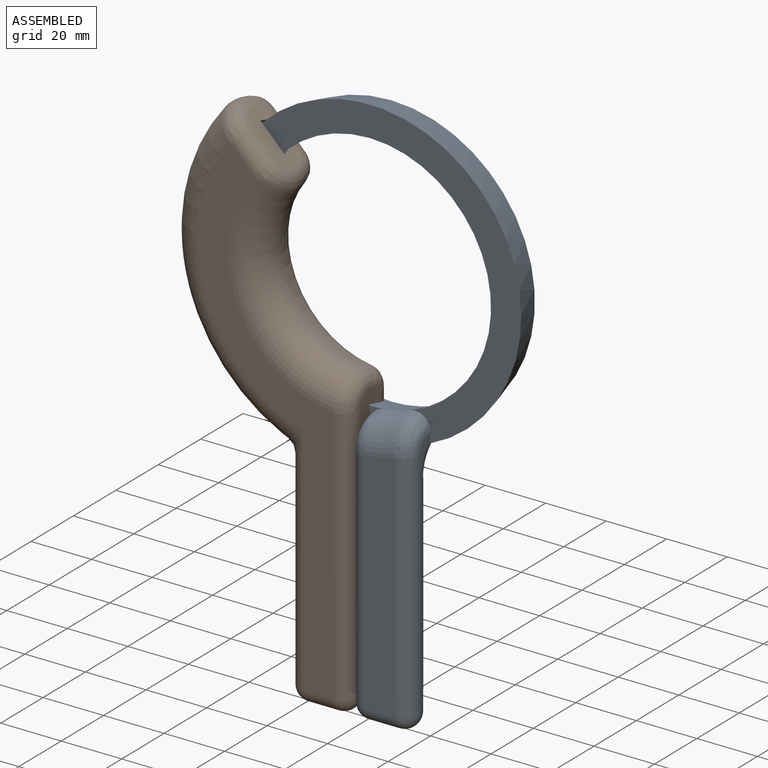
[diagram: assembled view]
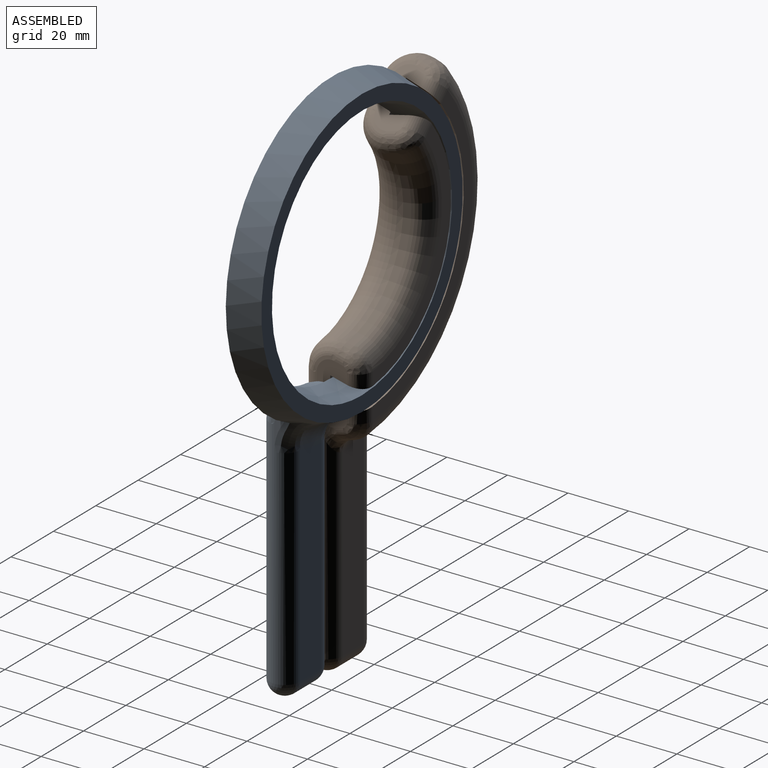
[diagram: assembled view, second angle]
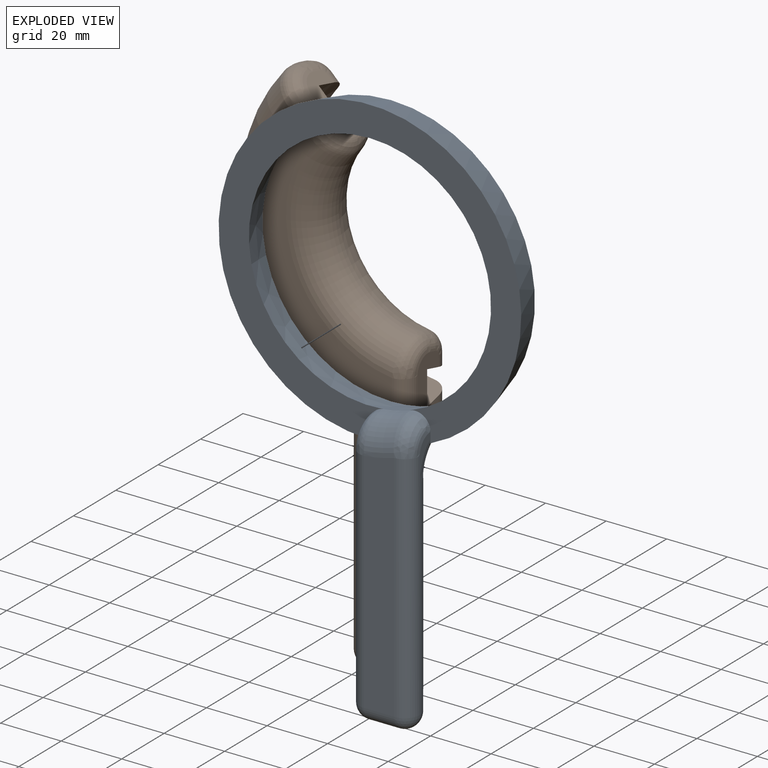
[diagram: exploded view]
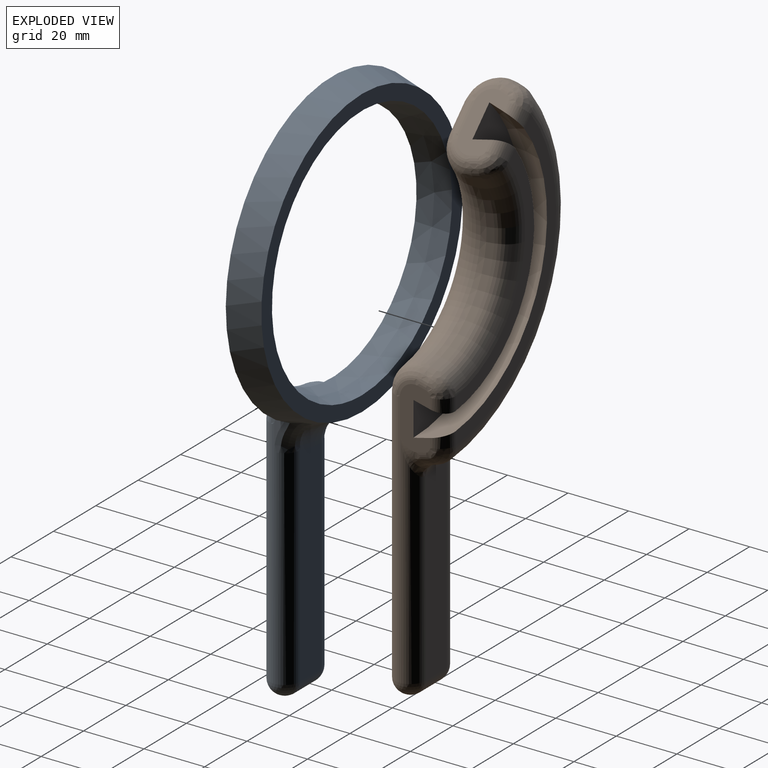
[diagram: exploded view, second angle]
ASSEMBLY  parts=2 mates=2
PART A: 19 faces, bbox 100.3x20.4x180.3 mm
  f0: plane 100.29x100.29mm, normal (0,-1,0), area 2638.5mm2, adj f2,f3,f5,f6,f10,f12,f15,f18
  f1: plane 95x95mm, normal (0,1,0), area 1413.7mm2, adj f2,f3
  f2: cone r=47.5mm half-angle=14deg, axis (0,-1,0), area 3030.5mm2, adj f0,f1,f9,f12,f18
  f3: cone r=40mm half-angle=14deg, axis (0,1,0), area 2671.6mm2, adj f0,f1,f8
  f4: plane 69.17x10mm, normal (0,1,0), area 681.4mm2, adj f9,f11,f14,f17
  f5: plane 12.88x5mm, normal (-1,0,0), area 20.1mm2, adj f0,f15,f17,f18
  f6: plane 13.41x5mm, normal (1,0,0), area 21mm2, adj f0,f10,f11,f12
  f7: plane 77.3x10mm, normal (0,-1,0), area 761mm2, adj f8,f11,f14,f17
  f8: torus R=50mm, axis (0,-1,0), area 148.1mm2, adj f3,f7,f10,f15
  f9: torus R=57.81mm, axis (0,-1,0), area 142.3mm2, adj f2,f4,f12,f18
  f10: bspline ~13.73x12.76mm, area 119.3mm2, adj f0,f6,f8,f11
  f11: cylinder r=5mm len=77.3mm, axis (0,0,-1), area 1150.4mm2, adj f4,f6,f7,f10,f12,f13
  f12: bspline ~16.02x13.57mm, area 87.5mm2, adj f0,f2,f6,f9,f11
  f13: sphere r=5mm, area 64.3mm2, adj f11,f14
  f14: cylinder r=5mm len=10mm, axis (-1,0,0), area 157.1mm2, adj f4,f7,f13,f16
  f15: bspline ~11.78x11.42mm, area 95.7mm2, adj f0,f5,f8,f17
  f16: sphere r=5mm, area 78.5mm2, adj f14,f17
  f17: cylinder r=5mm len=75.25mm, axis (0,0,1), area 1120.4mm2, adj f4,f5,f7,f15,f16,f18
  f18: bspline ~16.51x13.25mm, area 84.3mm2, adj f0,f2,f5,f9,f17
PART B: 43 faces, bbox 64.9x20.1x173.2 mm
  f0: cone r=62.81mm half-angle=14deg, axis (0,-1,0), area 287mm2, adj f12,f14,f21,f28,f40,f41
  f1: plane 67.63x36.98mm, normal (0,1,0), area 362.6mm2, adj f7,f11,f15,f36
  f2: cone r=32.19mm half-angle=14deg, axis (0,1,0), area 148.5mm2, adj f11,f13,f17,f34
  f3: plane 156.64x45mm, normal (0,-1,0), area 1721.1mm2, adj f13,f14,f19,f25,f29,f32
  f4: plane 85.41x47.34mm, normal (0,1,0), area 468.2mm2, adj f5,f12,f23,f24
  f5: cone r=50.64mm half-angle=14deg, axis (0,-1,0), area 1231.9mm2, adj f4,f6,f8,f9,f23,f24
  f6: plane 86.45x50.64mm, normal (0,1,0), area 1196.1mm2, adj f5,f7,f8,f9
  f7: cone r=41.98mm half-angle=14deg, axis (0,1,0), area 1011.6mm2, adj f1,f6,f8,f9,f15,f36
  f8: plane 14.24x14.24mm, normal (0.71,0,0.71), area 130.2mm2, adj f5,f6,f7,f15,f16,f17,f18,f19
  f9: plane 20.14x10mm, normal (1,0,0), area 130.2mm2, adj f5,f6,f7,f24,f26,f28,f30,f32
  f10: plane 62.57x10mm, normal (0,1,0), area 616.4mm2, adj f25,f29,f32,f39,f40
  f11: torus R=37.66mm, axis (0,-1,0), area 650.6mm2, adj f1,f2,f16,f35
  f12: torus R=52.34mm, axis (0,-1,0), area 1133.8mm2, adj f0,f4,f22,f26
  f13: torus R=40mm, axis (0,-1,0), area 1253.8mm2, adj f2,f3,f18,f33
  f14: torus R=50mm, axis (0,-1,0), area 1957.5mm2, adj f0,f3,f20,f42
  f15: cylinder r=5mm len=6.62mm, axis (-0.71,0,0.71), area 30.5mm2, adj f1,f7,f8,f16
  f16: bspline ~8.35x8.25mm, area 50.4mm2, adj f8,f11,f15,f17
  f17: bspline ~9.17x7.84mm, area 16.8mm2, adj f2,f8,f16,f18
  f18: bspline ~14.56x11.86mm, area 108.3mm2, adj f8,f13,f17,f19
  f19: cylinder r=5mm len=10.65mm, axis (0.71,0,-0.71), area 79mm2, adj f3,f8,f18,f20
  f20: bspline ~14.76x12.51mm, area 122.6mm2, adj f8,f14,f19,f21
  f21: bspline ~12.7x9.28mm, area 19.4mm2, adj f0,f8,f20,f22
  f22: bspline ~9.1x9.09mm, area 56.5mm2, adj f8,f12,f21,f23
  f23: cylinder r=5mm len=6.61mm, axis (-0.71,0,0.71), area 28.2mm2, adj f4,f5,f8,f22
  f24: cylinder r=5mm len=5mm, axis (0,0,1), area 28.2mm2, adj f4,f5,f9,f26
  f25: cylinder r=5mm len=77.3mm, axis (0,0,1), area 1065.7mm2, adj f3,f10,f27,f41,f42
  f26: bspline ~9.07x6.98mm, area 56.5mm2, adj f9,f12,f24,f28
  f27: sphere r=5mm, area 78.5mm2, adj f25,f29
  f28: bspline ~12.7x8.14mm, area 16mm2, adj f0,f9,f26,f30,f38,f39
  f29: cylinder r=5mm len=10mm, axis (-1,0,0), area 157.1mm2, adj f3,f10,f27,f31
  f30: bspline ~13.97x11.42mm, area 12.1mm2, adj f9,f28,f37
  f31: sphere r=5mm, area 71.4mm2, adj f29,f32
  f32: cylinder r=5mm len=85.31mm, axis (0,0,1), area 1189mm2, adj f3,f9,f10,f31,f33,f37,f38
  f33: bspline ~14.56x12.28mm, area 108.3mm2, adj f9,f13,f32,f34
  f34: bspline ~12.57x7.67mm, area 16.8mm2, adj f2,f9,f33,f35
  f35: bspline ~7.38x6.99mm, area 50.4mm2, adj f9,f11,f34,f36
  f36: cylinder r=5mm len=5mm, axis (0,0,1), area 30.5mm2, adj f1,f7,f9,f35
  f37: bspline ~13.22x7.53mm, area 18mm2, adj f30,f32,f38
  f38: bspline ~5.6x5.05mm, area 17.7mm2, adj f28,f32,f37,f39
  f39: bspline ~4.94x3.8mm, area 4.2mm2, adj f10,f28,f38,f40
  f40: torus R=64.21mm, axis (0,-1,0), area 58.5mm2, adj f0,f10,f39,f41
  f41: bspline ~7.33x6.18mm, area 23.2mm2, adj f0,f25,f40,f42
  f42: bspline ~13.89x12.84mm, area 67.4mm2, adj f14,f25,f41
PLACE A at identity
PLACE B at identity
MATE revolute B.f0 <-> A.f2  axis (0,1,0) through (0,10,0)mm
MATE planar A.f2 <-> B.f0  axis (0,1,0) through (0,10,0)mm
